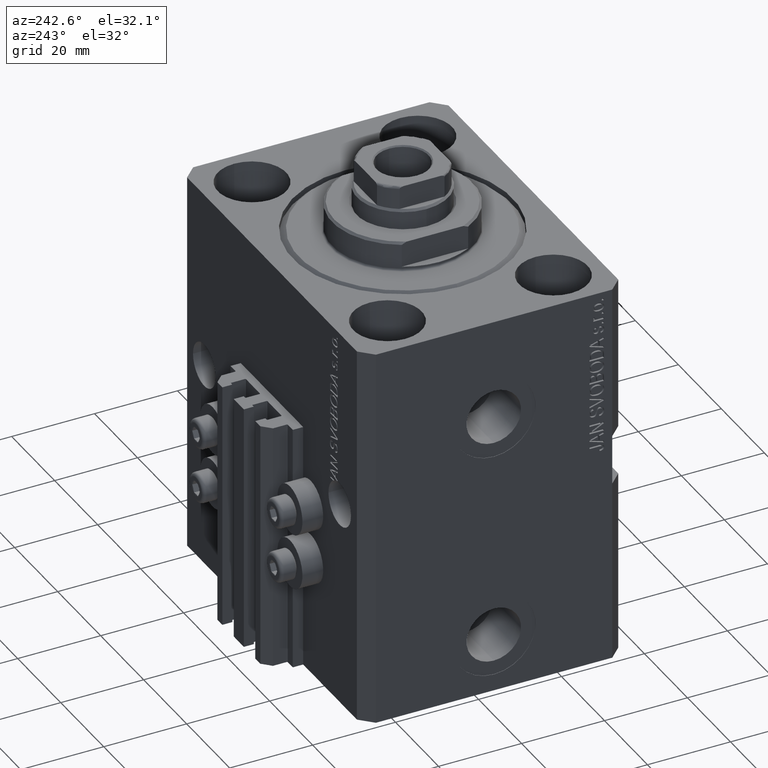
[diagram: clean part render]
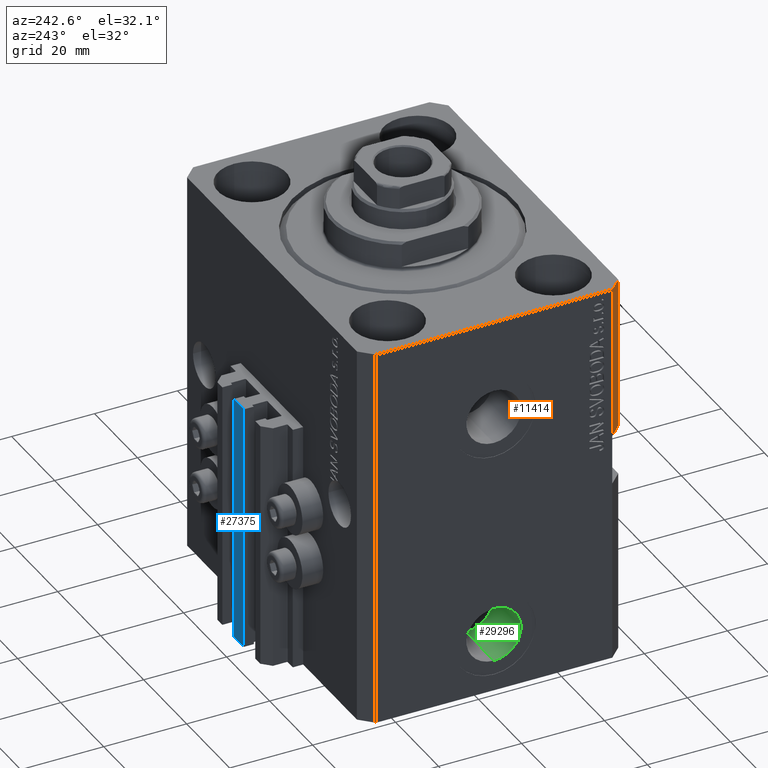
[diagram: same view with three faces highlighted in distinct colors, each labeled with its STEP entity id]
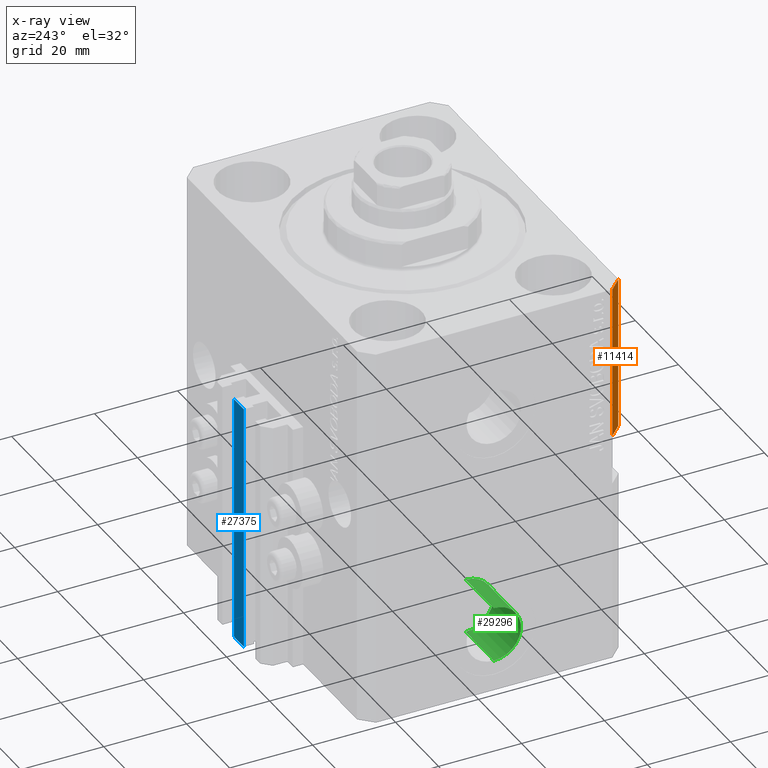
[diagram: x-ray of the same camera — body ghosted, the three highlighted faces saturated]
A machine part, auxiliary view with three faces highlighted in distinct colors.
The next image is the same camera in x-ray (body ghosted, the three faces saturated) — at least one of them is partly hidden behind the body in this view.
Their STEP definitions:

[orange] entity #11414 — the highlighted planar face has unit normal (-0.7071, -0.7071, 0).
#1206 = ORIENTED_EDGE ( 'NONE', *, *, #30709, .F. ) ;
#2498 = CARTESIAN_POINT ( 'NONE',  ( -42.50000000000000000, -28.50000000000000000, -93.00000000000000000 ) ) ;
#2950 = DIRECTION ( 'NONE',  ( 0.000000000000000000, 0.000000000000000000, 1.000000000000000000 ) ) ;
#3246 = LINE ( 'NONE', #46784, #30598 ) ;
#11414 = ADVANCED_FACE ( 'NONE', ( #34775 ), #12626, .T. ) ;
#12067 = ORIENTED_EDGE ( 'NONE', *, *, #39899, .F. ) ;
#12626 = PLANE ( 'NONE',  #32511 ) ;
#15761 = DIRECTION ( 'NONE',  ( -0.7071067811865479058, -0.7071067811865471286, 0.000000000000000000 ) ) ;
#17001 = VERTEX_POINT ( 'NONE', #20384 ) ;
#17460 = ORIENTED_EDGE ( 'NONE', *, *, #27547, .T. ) ;
#19611 = CARTESIAN_POINT ( 'NONE',  ( -42.50000000000000000, -28.50000000000000000, -93.00000000000000000 ) ) ;
#19844 = VECTOR ( 'NONE', #2950, 1000.000000000000000 ) ;
#20384 = CARTESIAN_POINT ( 'NONE',  ( -42.50000000000000000, -28.50000000000000711, -37.00000000000000711 ) ) ;
#20976 = CARTESIAN_POINT ( 'NONE',  ( -39.50000000000000711, -31.50000000000000000, -93.00000000000000000 ) ) ;
#21592 = EDGE_CURVE ( 'NONE', #41029, #17001, #45288, .T. ) ;
#22401 = CARTESIAN_POINT ( 'NONE',  ( -39.50000000000000000, -31.50000000000000711, -37.00000000000000711 ) ) ;
#27227 = DIRECTION ( 'NONE',  ( -0.7071067811865471286, 0.7071067811865479058, -1.731719623548279770E-16 ) ) ;
#27513 = LINE ( 'NONE', #2498, #41921 ) ;
#27547 = EDGE_CURVE ( 'NONE', #41029, #35888, #39291, .T. ) ;
#28732 = ORIENTED_EDGE ( 'NONE', *, *, #21592, .F. ) ;
#30453 = DIRECTION ( 'NONE',  ( 0.7071067811865471286, -0.7071067811865479058, 0.000000000000000000 ) ) ;
#30598 = VECTOR ( 'NONE', #32106, 1000.000000000000000 ) ;
#30709 = EDGE_CURVE ( 'NONE', #33164, #35888, #3246, .T. ) ;
#30846 = CARTESIAN_POINT ( 'NONE',  ( -42.50000000000000711, -28.49999999999999289, -37.00000000000000711 ) ) ;
#32106 = DIRECTION ( 'NONE',  ( 0.7071067811865471286, -0.7071067811865479058, 0.000000000000000000 ) ) ;
#32511 = AXIS2_PLACEMENT_3D ( 'NONE', #19611, #15761, #30453 ) ;
#33164 = VERTEX_POINT ( 'NONE', #39714 ) ;
#34775 = FACE_OUTER_BOUND ( 'NONE', #43072, .T. ) ;
#35227 = DIRECTION ( 'NONE',  ( 0.000000000000000000, 0.000000000000000000, 1.000000000000000000 ) ) ;
#35888 = VERTEX_POINT ( 'NONE', #38882 ) ;
#37356 = VECTOR ( 'NONE', #27227, 1000.000000000000000 ) ;
#38882 = CARTESIAN_POINT ( 'NONE',  ( -39.50000000000000711, -31.50000000000000000, 0.000000000000000000 ) ) ;
#39291 = LINE ( 'NONE', #20976, #19844 ) ;
#39714 = CARTESIAN_POINT ( 'NONE',  ( -42.50000000000000000, -28.50000000000000000, 0.000000000000000000 ) ) ;
#39899 = EDGE_CURVE ( 'NONE', #17001, #33164, #27513, .T. ) ;
#41029 = VERTEX_POINT ( 'NONE', #22401 ) ;
#41921 = VECTOR ( 'NONE', #35227, 1000.000000000000000 ) ;
#43072 = EDGE_LOOP ( 'NONE', ( #28732, #17460, #1206, #12067 ) ) ;
#45288 = LINE ( 'NONE', #30846, #37356 ) ;
#46784 = CARTESIAN_POINT ( 'NONE',  ( -42.50000000000000000, -28.50000000000000000, 0.000000000000000000 ) ) ;

[blue] entity #27375 — the highlighted planar face has unit normal (0, -1, 0).
#2009 = DIRECTION ( 'NONE',  ( 1.000000000000000000, 0.000000000000000000, 0.000000000000000000 ) ) ;
#3941 = DIRECTION ( 'NONE',  ( 0.000000000000000000, 0.000000000000000000, 1.000000000000000000 ) ) ;
#5589 = FACE_OUTER_BOUND ( 'NONE', #43553, .T. ) ;
#5607 = CARTESIAN_POINT ( 'NONE',  ( -2.350000000000003642, 39.50000000000000711, -93.00000000000000000 ) ) ;
#5824 = PLANE ( 'NONE',  #20638 ) ;
#7017 = ORIENTED_EDGE ( 'NONE', *, *, #21418, .F. ) ;
#7539 = LINE ( 'NONE', #22229, #24238 ) ;
#7997 = VECTOR ( 'NONE', #12632, 1000.000000000000000 ) ;
#10191 = EDGE_CURVE ( 'NONE', #19898, #16332, #46515, .T. ) ;
#10534 = CARTESIAN_POINT ( 'NONE',  ( -2.350000000000003642, 39.50000000000000711, -33.00000000000000000 ) ) ;
#11681 = CARTESIAN_POINT ( 'NONE',  ( 2.349999999999999645, 39.50000000000000711, -33.00000000000000000 ) ) ;
#12303 = ORIENTED_EDGE ( 'NONE', *, *, #29568, .F. ) ;
#12632 = DIRECTION ( 'NONE',  ( 0.000000000000000000, 0.000000000000000000, 1.000000000000000000 ) ) ;
#16246 = LINE ( 'NONE', #41999, #7997 ) ;
#16332 = VERTEX_POINT ( 'NONE', #11681 ) ;
#16340 = VECTOR ( 'NONE', #24627, 1000.000000000000000 ) ;
#18182 = EDGE_CURVE ( 'NONE', #43056, #19898, #16246, .T. ) ;
#19898 = VERTEX_POINT ( 'NONE', #10534 ) ;
#20548 = ORIENTED_EDGE ( 'NONE', *, *, #18182, .T. ) ;
#20638 = AXIS2_PLACEMENT_3D ( 'NONE', #45534, #45768, #24347 ) ;
#21418 = EDGE_CURVE ( 'NONE', #42089, #16332, #7539, .T. ) ;
#22229 = CARTESIAN_POINT ( 'NONE',  ( 2.349999999999999645, 39.50000000000000711, -93.00000000000000000 ) ) ;
#24238 = VECTOR ( 'NONE', #3941, 1000.000000000000000 ) ;
#24347 = DIRECTION ( 'NONE',  ( 0.000000000000000000, -0.000000000000000000, -1.000000000000000000 ) ) ;
#24627 = DIRECTION ( 'NONE',  ( 1.000000000000000000, 0.000000000000000000, 0.000000000000000000 ) ) ;
#27375 = ADVANCED_FACE ( 'NONE', ( #5589 ), #5824, .F. ) ;
#29568 = EDGE_CURVE ( 'NONE', #43056, #42089, #38584, .T. ) ;
#33235 = CARTESIAN_POINT ( 'NONE',  ( 2.349999999999999645, 39.50000000000000711, -93.00000000000000000 ) ) ;
#34514 = CARTESIAN_POINT ( 'NONE',  ( -2.350000000000003642, 39.50000000000000711, -33.00000000000000000 ) ) ;
#38584 = LINE ( 'NONE', #5607, #39822 ) ;
#39822 = VECTOR ( 'NONE', #2009, 1000.000000000000000 ) ;
#41999 = CARTESIAN_POINT ( 'NONE',  ( -2.350000000000003642, 39.50000000000000711, -93.00000000000000000 ) ) ;
#42089 = VERTEX_POINT ( 'NONE', #33235 ) ;
#42842 = ORIENTED_EDGE ( 'NONE', *, *, #10191, .T. ) ;
#43056 = VERTEX_POINT ( 'NONE', #44067 ) ;
#43553 = EDGE_LOOP ( 'NONE', ( #42842, #7017, #12303, #20548 ) ) ;
#44067 = CARTESIAN_POINT ( 'NONE',  ( -2.350000000000003642, 39.50000000000000711, -93.00000000000000000 ) ) ;
#45534 = CARTESIAN_POINT ( 'NONE',  ( -2.350000000000003642, 39.50000000000000711, -93.00000000000000000 ) ) ;
#45768 = DIRECTION ( 'NONE',  ( 0.000000000000000000, -1.000000000000000000, 0.000000000000000000 ) ) ;
#46515 = LINE ( 'NONE', #34514, #16340 ) ;

[green] entity #29296 — the highlighted cylindrical surface (edge-blend (fillet) strip) has radius 6.58 mm, axis along (-1, -0, -0).
#245 = DIRECTION ( 'NONE',  ( -1.000000000000000000, -0.000000000000000000, -0.000000000000000000 ) ) ;
#593 = CARTESIAN_POINT ( 'NONE',  ( -29.40000000000000213, -9.674709713264090904E-15, -79.00000000000000000 ) ) ;
#3613 = CIRCLE ( 'NONE', #22053, 6.580000000000002736 ) ;
#3878 = EDGE_CURVE ( 'NONE', #24780, #46396, #32311, .T. ) ;
#3971 = DIRECTION ( 'NONE',  ( 0.000000000000000000, 0.000000000000000000, 1.000000000000000000 ) ) ;
#4752 = VECTOR ( 'NONE', #43876, 1000.000000000000000 ) ;
#7024 = EDGE_CURVE ( 'NONE', #46396, #26061, #14980, .T. ) ;
#8257 = AXIS2_PLACEMENT_3D ( 'NONE', #33315, #11175, #10938 ) ;
#9186 = ORIENTED_EDGE ( 'NONE', *, *, #42333, .T. ) ;
#10342 = CARTESIAN_POINT ( 'NONE',  ( -29.40000000000000213, -8.868892119425131862E-15, -85.57999999999999829 ) ) ;
#10799 = CARTESIAN_POINT ( 'NONE',  ( -42.39999999999999858, -9.674709713264090904E-15, -79.00000000000000000 ) ) ;
#10938 = DIRECTION ( 'NONE',  ( 0.000000000000000000, 0.000000000000000000, 1.000000000000000000 ) ) ;
#11175 = DIRECTION ( 'NONE',  ( -1.000000000000000000, -0.000000000000000000, -0.000000000000000000 ) ) ;
#14227 = ORIENTED_EDGE ( 'NONE', *, *, #37232, .T. ) ;
#14980 = LINE ( 'NONE', #25580, #4752 ) ;
#15671 = EDGE_LOOP ( 'NONE', ( #47568, #14227, #9186, #41208 ) ) ;
#17202 = FACE_OUTER_BOUND ( 'NONE', #15671, .T. ) ;
#17698 = AXIS2_PLACEMENT_3D ( 'NONE', #593, #33089, #3971 ) ;
#22053 = AXIS2_PLACEMENT_3D ( 'NONE', #10799, #28845, #46413 ) ;
#23585 = CARTESIAN_POINT ( 'NONE',  ( -42.39999999999999858, -8.868892119425131862E-15, -85.57999999999999829 ) ) ;
#24780 = VERTEX_POINT ( 'NONE', #39215 ) ;
#25580 = CARTESIAN_POINT ( 'NONE',  ( -29.40000000000000213, -9.674709713264090904E-15, -72.42000000000000171 ) ) ;
#26061 = VERTEX_POINT ( 'NONE', #44182 ) ;
#28845 = DIRECTION ( 'NONE',  ( -1.000000000000000000, 0.000000000000000000, 0.000000000000000000 ) ) ;
#29296 = ADVANCED_FACE ( 'NONE', ( #17202 ), #29941, .F. ) ;
#29941 = CYLINDRICAL_SURFACE ( 'NONE', #8257, 6.580000000000002736 ) ;
#32311 = CIRCLE ( 'NONE', #17698, 6.580000000000002736 ) ;
#33089 = DIRECTION ( 'NONE',  ( -1.000000000000000000, 0.000000000000000000, 0.000000000000000000 ) ) ;
#33315 = CARTESIAN_POINT ( 'NONE',  ( -29.40000000000000213, -9.674709713264090904E-15, -79.00000000000000000 ) ) ;
#36481 = VECTOR ( 'NONE', #245, 1000.000000000000000 ) ;
#37232 = EDGE_CURVE ( 'NONE', #24780, #46775, #43313, .T. ) ;
#39215 = CARTESIAN_POINT ( 'NONE',  ( -29.40000000000000213, -8.868892119425131862E-15, -85.57999999999999829 ) ) ;
#41208 = ORIENTED_EDGE ( 'NONE', *, *, #7024, .F. ) ;
#42333 = EDGE_CURVE ( 'NONE', #46775, #26061, #3613, .T. ) ;
#43313 = LINE ( 'NONE', #10342, #36481 ) ;
#43876 = DIRECTION ( 'NONE',  ( -1.000000000000000000, -0.000000000000000000, -0.000000000000000000 ) ) ;
#44182 = CARTESIAN_POINT ( 'NONE',  ( -42.39999999999999858, -9.674709713264090904E-15, -72.42000000000000171 ) ) ;
#45074 = CARTESIAN_POINT ( 'NONE',  ( -29.40000000000000213, -9.674709713264090904E-15, -72.42000000000000171 ) ) ;
#46396 = VERTEX_POINT ( 'NONE', #45074 ) ;
#46413 = DIRECTION ( 'NONE',  ( 0.000000000000000000, 0.000000000000000000, 1.000000000000000000 ) ) ;
#46775 = VERTEX_POINT ( 'NONE', #23585 ) ;
#47568 = ORIENTED_EDGE ( 'NONE', *, *, #3878, .F. ) ;